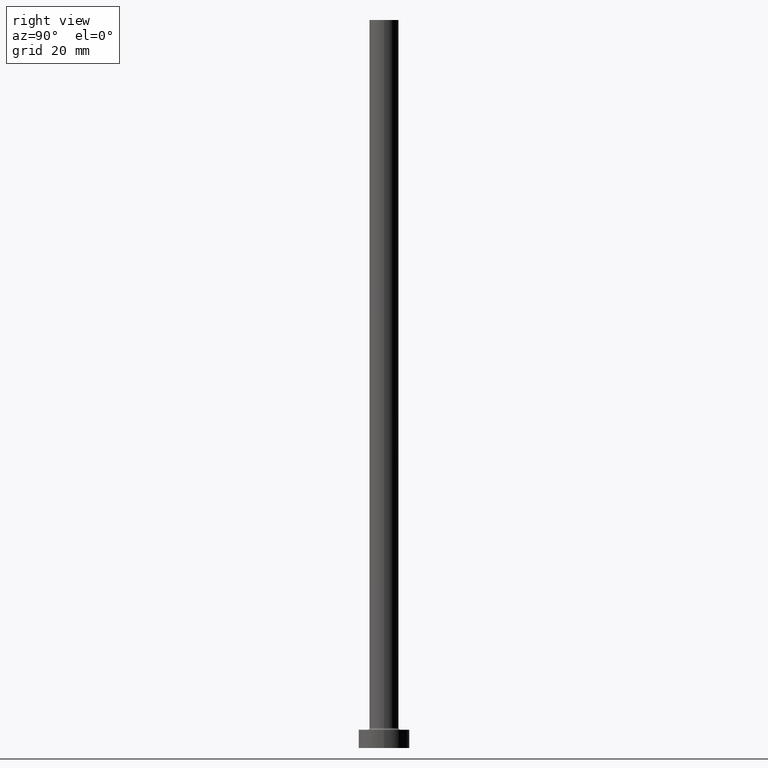
[diagram: clean part render]
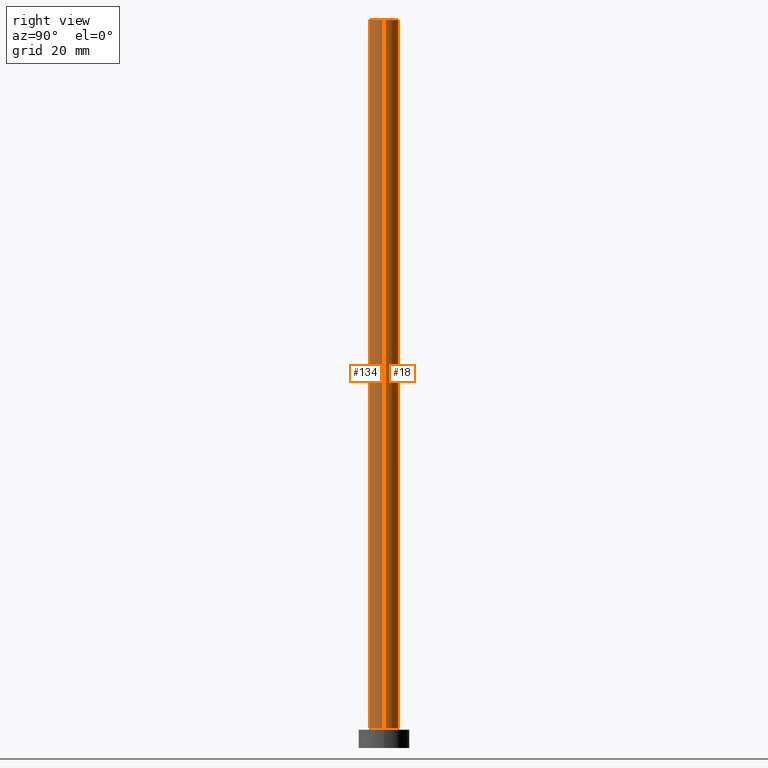
[diagram: same view with one multi-face feature highlighted, each face labeled with its STEP entity id]
A machine part, right view. The highlighted faces form ONE feature: a constant-radius fillet chain: 2 tangent blend faces with common blend radius 4 mm. The faces share edges in the B-rep.
Their STEP definitions:
[1] entity #134 (Cylinder):
#2 = DIRECTION ( 'NONE',  ( -0.000000000000000000, -0.000000000000000000, -1.000000000000000000 ) ) ;
#8 = AXIS2_PLACEMENT_3D ( 'NONE', #171, #417, #59 ) ;
#12 = EDGE_CURVE ( 'NONE', #173, #242, #96, .T. ) ;
#36 = CYLINDRICAL_SURFACE ( 'NONE', #216, 4.000000000000000000 ) ;
#42 = LINE ( 'NONE', #433, #399 ) ;
#59 = DIRECTION ( 'NONE',  ( 1.000000000000000000, 0.000000000000000000, 0.000000000000000000 ) ) ;
#96 = CIRCLE ( 'NONE', #8, 4.000000000000000000 ) ;
#116 = CARTESIAN_POINT ( 'NONE',  ( 4.000000000000000000, 4.898587196589412829E-16, 200.0000000000000000 ) ) ;
#118 = EDGE_CURVE ( 'NONE', #247, #316, #378, .T. ) ;
#125 = LINE ( 'NONE', #368, #304 ) ;
#134 = ADVANCED_FACE ( 'NONE', ( #180 ), #36, .T. ) ;
#165 = EDGE_CURVE ( 'NONE', #242, #316, #42, .T. ) ;
#171 = CARTESIAN_POINT ( 'NONE',  ( 0.000000000000000000, 0.000000000000000000, 200.0000000000000000 ) ) ;
#173 = VERTEX_POINT ( 'NONE', #427 ) ;
#180 = FACE_OUTER_BOUND ( 'NONE', #253, .T. ) ;
#197 = CARTESIAN_POINT ( 'NONE',  ( 4.000000000000000000, 4.898587196589412829E-16, 5.500000000000005329 ) ) ;
#206 = ORIENTED_EDGE ( 'NONE', *, *, #118, .T. ) ;
#216 = AXIS2_PLACEMENT_3D ( 'NONE', #255, #2, #401 ) ;
#231 = ORIENTED_EDGE ( 'NONE', *, *, #12, .F. ) ;
#232 = EDGE_CURVE ( 'NONE', #173, #247, #125, .T. ) ;
#234 = AXIS2_PLACEMENT_3D ( 'NONE', #258, #436, #356 ) ;
#236 = CARTESIAN_POINT ( 'NONE',  ( -4.000000000000000000, 0.000000000000000000, 5.500000000000005329 ) ) ;
#242 = VERTEX_POINT ( 'NONE', #116 ) ;
#247 = VERTEX_POINT ( 'NONE', #236 ) ;
#253 = EDGE_LOOP ( 'NONE', ( #302, #231, #338, #206 ) ) ;
#255 = CARTESIAN_POINT ( 'NONE',  ( 0.000000000000000000, 0.000000000000000000, 200.0000000000000000 ) ) ;
#258 = CARTESIAN_POINT ( 'NONE',  ( 0.000000000000000000, 0.000000000000000000, 5.500000000000005329 ) ) ;
#302 = ORIENTED_EDGE ( 'NONE', *, *, #165, .F. ) ;
#304 = VECTOR ( 'NONE', #408, 1000.000000000000000 ) ;
#316 = VERTEX_POINT ( 'NONE', #197 ) ;
#328 = DIRECTION ( 'NONE',  ( -0.000000000000000000, -0.000000000000000000, -1.000000000000000000 ) ) ;
#338 = ORIENTED_EDGE ( 'NONE', *, *, #232, .T. ) ;
#356 = DIRECTION ( 'NONE',  ( 1.000000000000000000, 0.000000000000000000, 0.000000000000000000 ) ) ;
#368 = CARTESIAN_POINT ( 'NONE',  ( -4.000000000000000000, 0.000000000000000000, 200.0000000000000000 ) ) ;
#378 = CIRCLE ( 'NONE', #234, 4.000000000000000000 ) ;
#399 = VECTOR ( 'NONE', #328, 1000.000000000000000 ) ;
#401 = DIRECTION ( 'NONE',  ( -1.000000000000000000, 0.000000000000000000, 0.000000000000000000 ) ) ;
#408 = DIRECTION ( 'NONE',  ( -0.000000000000000000, -0.000000000000000000, -1.000000000000000000 ) ) ;
#417 = DIRECTION ( 'NONE',  ( 0.000000000000000000, 0.000000000000000000, 1.000000000000000000 ) ) ;
#427 = CARTESIAN_POINT ( 'NONE',  ( -4.000000000000000000, 0.000000000000000000, 200.0000000000000000 ) ) ;
#433 = CARTESIAN_POINT ( 'NONE',  ( 4.000000000000000000, 4.898587196589412829E-16, 200.0000000000000000 ) ) ;
#436 = DIRECTION ( 'NONE',  ( 0.000000000000000000, 0.000000000000000000, 1.000000000000000000 ) ) ;
[2] entity #18 (Cylinder):
#7 = DIRECTION ( 'NONE',  ( 1.000000000000000000, 0.000000000000000000, 0.000000000000000000 ) ) ;
#18 = ADVANCED_FACE ( 'NONE', ( #349 ), #28, .T. ) ;
#28 = CYLINDRICAL_SURFACE ( 'NONE', #315, 4.000000000000000000 ) ;
#35 = CARTESIAN_POINT ( 'NONE',  ( 0.000000000000000000, 0.000000000000000000, 200.0000000000000000 ) ) ;
#42 = LINE ( 'NONE', #433, #399 ) ;
#65 = CARTESIAN_POINT ( 'NONE',  ( 0.000000000000000000, 0.000000000000000000, 200.0000000000000000 ) ) ;
#71 = CARTESIAN_POINT ( 'NONE',  ( 0.000000000000000000, 0.000000000000000000, 5.500000000000005329 ) ) ;
#75 = ORIENTED_EDGE ( 'NONE', *, *, #165, .T. ) ;
#91 = EDGE_CURVE ( 'NONE', #316, #247, #434, .T. ) ;
#95 = ORIENTED_EDGE ( 'NONE', *, *, #149, .F. ) ;
#114 = AXIS2_PLACEMENT_3D ( 'NONE', #65, #284, #185 ) ;
#116 = CARTESIAN_POINT ( 'NONE',  ( 4.000000000000000000, 4.898587196589412829E-16, 200.0000000000000000 ) ) ;
#119 = EDGE_LOOP ( 'NONE', ( #95, #75, #453, #443 ) ) ;
#125 = LINE ( 'NONE', #368, #304 ) ;
#129 = CIRCLE ( 'NONE', #114, 4.000000000000000000 ) ;
#147 = DIRECTION ( 'NONE',  ( 0.000000000000000000, 0.000000000000000000, 1.000000000000000000 ) ) ;
#149 = EDGE_CURVE ( 'NONE', #242, #173, #129, .T. ) ;
#165 = EDGE_CURVE ( 'NONE', #242, #316, #42, .T. ) ;
#173 = VERTEX_POINT ( 'NONE', #427 ) ;
#185 = DIRECTION ( 'NONE',  ( 1.000000000000000000, 0.000000000000000000, 0.000000000000000000 ) ) ;
#197 = CARTESIAN_POINT ( 'NONE',  ( 4.000000000000000000, 4.898587196589412829E-16, 5.500000000000005329 ) ) ;
#218 = DIRECTION ( 'NONE',  ( -1.000000000000000000, 0.000000000000000000, 0.000000000000000000 ) ) ;
#232 = EDGE_CURVE ( 'NONE', #173, #247, #125, .T. ) ;
#236 = CARTESIAN_POINT ( 'NONE',  ( -4.000000000000000000, 0.000000000000000000, 5.500000000000005329 ) ) ;
#242 = VERTEX_POINT ( 'NONE', #116 ) ;
#247 = VERTEX_POINT ( 'NONE', #236 ) ;
#284 = DIRECTION ( 'NONE',  ( 0.000000000000000000, 0.000000000000000000, 1.000000000000000000 ) ) ;
#304 = VECTOR ( 'NONE', #408, 1000.000000000000000 ) ;
#315 = AXIS2_PLACEMENT_3D ( 'NONE', #35, #397, #218 ) ;
#316 = VERTEX_POINT ( 'NONE', #197 ) ;
#328 = DIRECTION ( 'NONE',  ( -0.000000000000000000, -0.000000000000000000, -1.000000000000000000 ) ) ;
#349 = FACE_OUTER_BOUND ( 'NONE', #119, .T. ) ;
#368 = CARTESIAN_POINT ( 'NONE',  ( -4.000000000000000000, 0.000000000000000000, 200.0000000000000000 ) ) ;
#397 = DIRECTION ( 'NONE',  ( -0.000000000000000000, -0.000000000000000000, -1.000000000000000000 ) ) ;
#399 = VECTOR ( 'NONE', #328, 1000.000000000000000 ) ;
#408 = DIRECTION ( 'NONE',  ( -0.000000000000000000, -0.000000000000000000, -1.000000000000000000 ) ) ;
#427 = CARTESIAN_POINT ( 'NONE',  ( -4.000000000000000000, 0.000000000000000000, 200.0000000000000000 ) ) ;
#433 = CARTESIAN_POINT ( 'NONE',  ( 4.000000000000000000, 4.898587196589412829E-16, 200.0000000000000000 ) ) ;
#434 = CIRCLE ( 'NONE', #447, 4.000000000000000000 ) ;
#443 = ORIENTED_EDGE ( 'NONE', *, *, #232, .F. ) ;
#447 = AXIS2_PLACEMENT_3D ( 'NONE', #71, #147, #7 ) ;
#453 = ORIENTED_EDGE ( 'NONE', *, *, #91, .T. ) ;